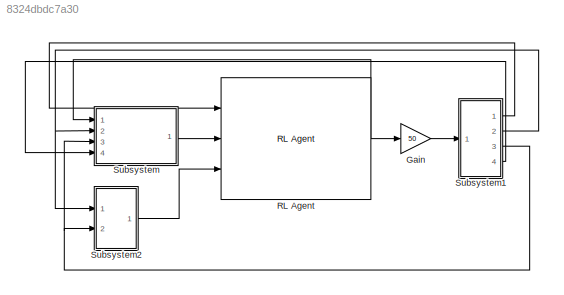
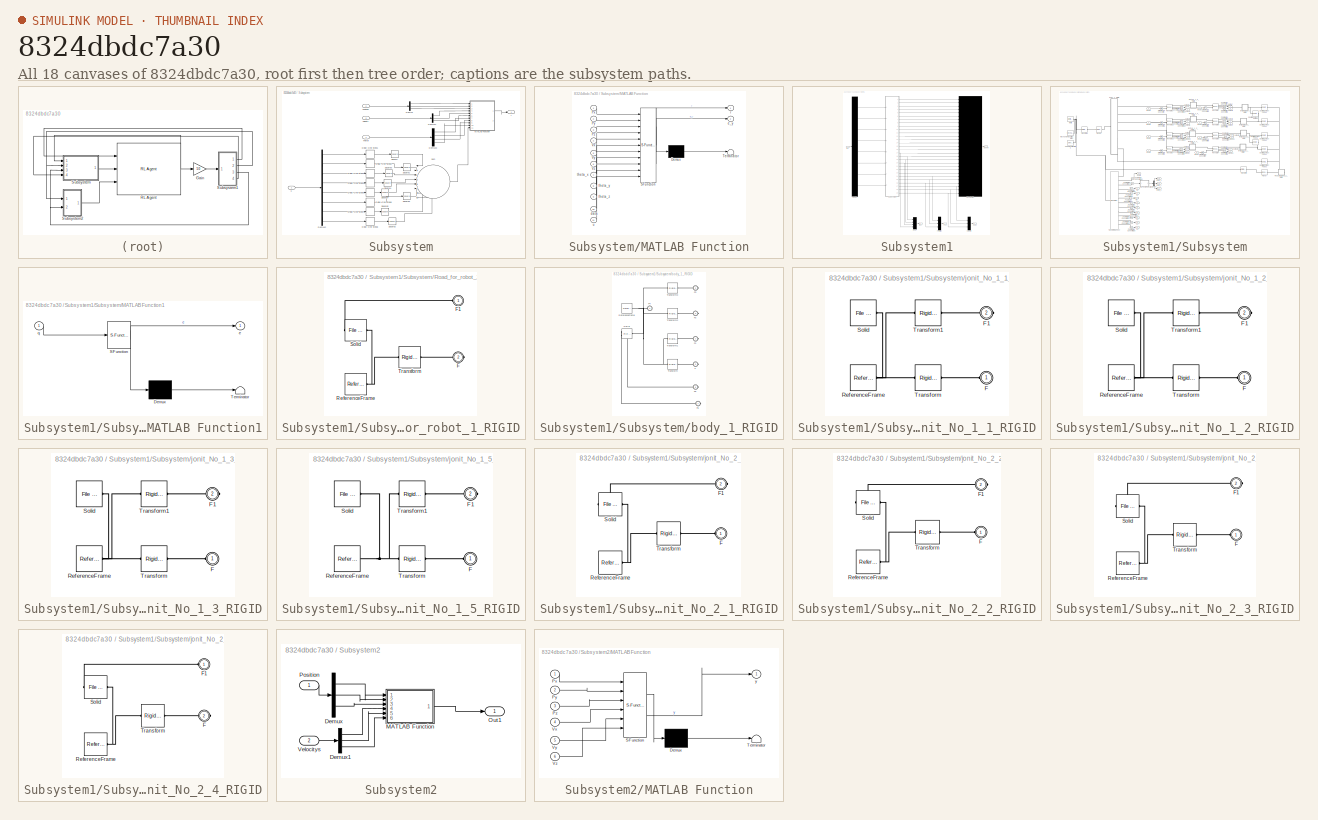
[diagram: thumbnail index - all 18 canvases of the model, root first then tree order]
MODEL slx_8324dbdc7a30
KIND model
CONFIG AbsTol = auto
CONFIG EnableMultiTasking = off
CONFIG FixedStep = auto
CONFIG MaxStep = auto
CONFIG MinStep = auto
CONFIG RelTol = 1e-3
CONFIG SampleTimeConstraint = Unconstrained
CONFIG SolverName = VariableStepAuto
CONFIG StartTime = 0.0
CONFIG StopTime = 10.0
BLOCK [Gain] Gain
  Gain = 50
  Multiplication = Matrix(K*u)
BLOCK [Reference] RL Agent  REF=rllib/RL Agent
  Ports = [3, 1]
  SourceBlock = rllib/RL Agent
  SourceProductBaseCode = RL
  SourceType = RL Agent
BLOCK [SubSystem] Subsystem
  Ports = [4, 1]
  RequestExecContextInheritance = off
BLOCK [Delay] Subsystem/Delay One Step1
  DelayLength = 1
  InputPortMap = u0
  Ports = [1, 1]
BLOCK [Delay] Subsystem/Delay One Step2
  DelayLength = 1
  InputPortMap = u0
  Ports = [1, 1]
BLOCK [Delay] Subsystem/Delay One Step3
  DelayLength = 1
  InputPortMap = u0
  Ports = [1, 1]
BLOCK [Delay] Subsystem/Delay One Step4
  DelayLength = 1
  InputPortMap = u0
  Ports = [1, 1]
BLOCK [Delay] Subsystem/Delay One Step5
  DelayLength = 1
  InputPortMap = u0
  Ports = [1, 1]
BLOCK [Delay] Subsystem/Delay One Step6
  DelayLength = 1
  InputPortMap = u0
  Ports = [1, 1]
BLOCK [Delay] Subsystem/Delay One Step7
  DelayLength = 1
  InputPortMap = u0
  Ports = [1, 1]
BLOCK [Delay] Subsystem/Delay One Step8
  DelayLength = 1
  InputPortMap = u0
  Ports = [1, 1]
BLOCK [Demux] Subsystem/Demux
  Outputs = 3
  Ports = [1, 3]
BLOCK [Demux] Subsystem/Demux1
  Outputs = 3
  Ports = [1, 3]
BLOCK [Demux] Subsystem/Demux2
  Outputs = 8
  Ports = [1, 8]
BLOCK [Demux] Subsystem/Demux3
  Ports = [1, 4]
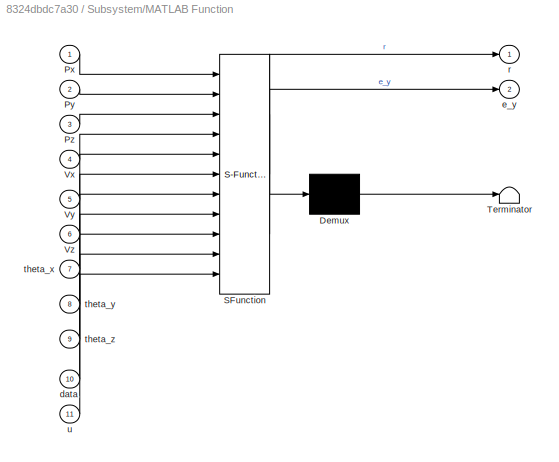
BLOCK [SubSystem] Subsystem/MATLAB Function
  ErrorFcn = Stateflow.Translate.translate
  PermitHierarchicalResolution = ExplicitOnly
  Ports = [11, 2]
  RequestExecContextInheritance = off
  SFBlockType = MATLAB Function
  TreatAsAtomicUnit = on
BLOCK [Demux] Subsystem/MATLAB Function/ Demux 
  Outputs = 1
  Ports = [1, 1]
BLOCK [S-Function] Subsystem/MATLAB Function/ SFunction 
  EnableBusSupport = on
  FunctionName = sf_sfun
  PortCounts = [11 3]
  Ports = [11, 3]
  SFcnIsStateOwnerBlock = off
  SFunctionDeploymentMode = off
  Tag = Stateflow S-Function 2
BLOCK [Terminator] Subsystem/MATLAB Function/ Terminator 
BLOCK [Inport] Subsystem/MATLAB Function/Px
BLOCK [Inport] Subsystem/MATLAB Function/Py
  Port = 2
BLOCK [Inport] Subsystem/MATLAB Function/Pz
  Port = 3
BLOCK [Inport] Subsystem/MATLAB Function/Vx
  Port = 4
BLOCK [Inport] Subsystem/MATLAB Function/Vy
  Port = 5
BLOCK [Inport] Subsystem/MATLAB Function/Vz
  Port = 6
BLOCK [Inport] Subsystem/MATLAB Function/data
  Port = 10
BLOCK [Outport] Subsystem/MATLAB Function/e_y
  Port = 2
BLOCK [Outport] Subsystem/MATLAB Function/r
BLOCK [Inport] Subsystem/MATLAB Function/theta_x
  Port = 7
BLOCK [Inport] Subsystem/MATLAB Function/theta_y
  Port = 8
BLOCK [Inport] Subsystem/MATLAB Function/theta_z
  Port = 9
BLOCK [Inport] Subsystem/MATLAB Function/u
  Port = 11
BLOCK [Inport] Subsystem/Position
  Port = 2
BLOCK [Math] Subsystem/Square
  Operator = square
  Ports = [1, 1]
BLOCK [Math] Subsystem/Square1
  Operator = square
  Ports = [1, 1]
BLOCK [Math] Subsystem/Square2
  Operator = square
  Ports = [1, 1]
BLOCK [Math] Subsystem/Square3
  Operator = square
  Ports = [1, 1]
BLOCK [Math] Subsystem/Square4
  Operator = square
  Ports = [1, 1]
BLOCK [Math] Subsystem/Square5
  Operator = square
  Ports = [1, 1]
BLOCK [Math] Subsystem/Square6
  Operator = square
  Ports = [1, 1]
BLOCK [Math] Subsystem/Square7
  Operator = square
  Ports = [1, 1]
BLOCK [Sum] Subsystem/Sum
  Inputs = |++++++++
  Ports = [8, 1]
BLOCK [Inport] Subsystem/Thetot
  Port = 4
BLOCK [Inport] Subsystem/Velocity
  Port = 3
BLOCK [Outport] Subsystem/r
BLOCK [Inport] Subsystem/u
BLOCK [SubSystem] Subsystem1
  Ports = [1, 4]
  RequestExecContextInheritance = off
BLOCK [Demux] Subsystem1/Demux
  Outputs = 8
  Ports = [1, 8]
BLOCK [Inport] Subsystem1/In1
BLOCK [Outport] Subsystem1/Observ
BLOCK [Mux] Subsystem1/Observation
  DisplayOption = bar
  Inputs = 29
  Ports = [29, 1]
BLOCK [Outport] Subsystem1/Pos
  Port = 2
BLOCK [Mux] Subsystem1/Position
  DisplayOption = bar
  Inputs = 3
  Ports = [3, 1]
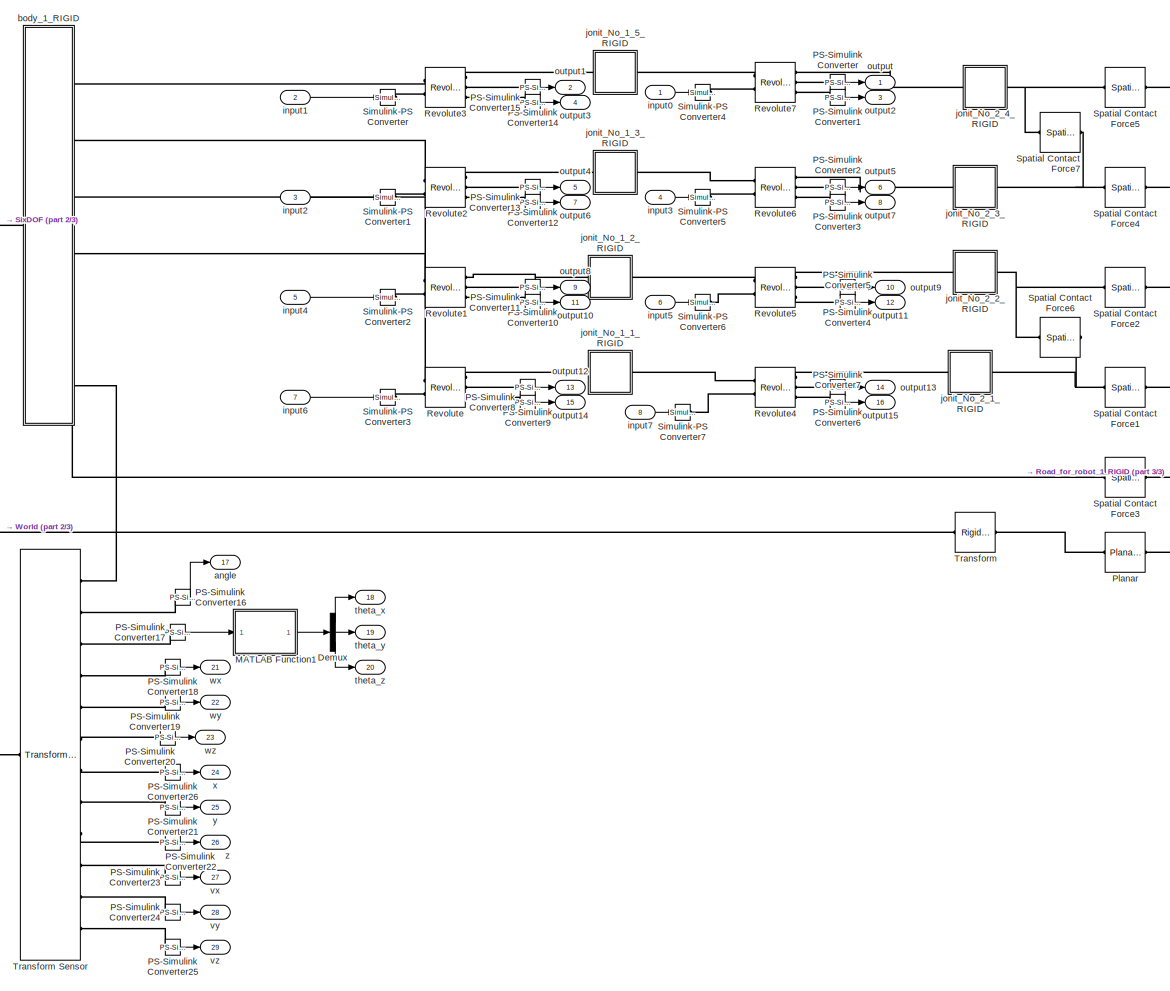
[diagram: Subsystem1/Subsystem - part 1/3, center side, full height]
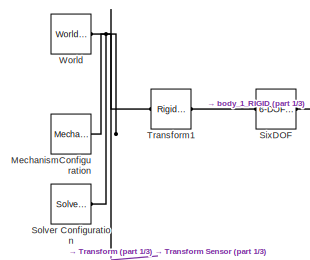
[diagram: Subsystem1/Subsystem - part 2/3, top left region]
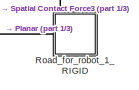
[diagram: Subsystem1/Subsystem - part 3/3, middle right region]
BLOCK [SubSystem] Subsystem1/Subsystem
  Ports = [8, 29]
  RequestExecContextInheritance = off
BLOCK [Demux] Subsystem1/Subsystem/Demux
  Outputs = 3
  Ports = [1, 3]
BLOCK [SubSystem] Subsystem1/Subsystem/MATLAB Function1
  ErrorFcn = Stateflow.Translate.translate
  PermitHierarchicalResolution = ExplicitOnly
  Ports = [1, 1]
  RequestExecContextInheritance = off
  SFBlockType = MATLAB Function
  TreatAsAtomicUnit = on
BLOCK [Demux] Subsystem1/Subsystem/MATLAB Function1/ Demux 
  Outputs = 1
  Ports = [1, 1]
BLOCK [S-Function] Subsystem1/Subsystem/MATLAB Function1/ SFunction 
  EnableBusSupport = on
  FunctionName = sf_sfun
  PortCounts = [1 2]
  Ports = [1, 2]
  SFcnIsStateOwnerBlock = off
  SFunctionDeploymentMode = off
  Tag = Stateflow S-Function 4
BLOCK [Terminator] Subsystem1/Subsystem/MATLAB Function1/ Terminator 
BLOCK [Outport] Subsystem1/Subsystem/MATLAB Function1/e
  VectorParamsAs1DForOutWhenUnconnected = off
BLOCK [Inport] Subsystem1/Subsystem/MATLAB Function1/q
BLOCK [Reference] Subsystem1/Subsystem/MechanismConfiguration  REF=sm_lib/Utilities/Mechanism
Configuration
  Ports = [0, 0, 0, 0, 0, 0, 1]
  SourceBlock = sm_lib/Utilities/Mechanism\nConfiguration
  SourceProductBaseCode = MS
  SourceType = Mechanism\nConfiguration
BLOCK [Reference] Subsystem1/Subsystem/PS-Simulink Converter  REF=nesl_utility/PS-Simulink
Converter
  Ports = [0, 1, 0, 0, 0, 1]
  SourceBlock = nesl_utility/PS-Simulink\nConverter
  SourceProductBaseCode = PW,SS
  SourceType = PS-Simulink\nConverter
BLOCK [Reference] Subsystem1/Subsystem/PS-Simulink Converter1  REF=nesl_utility/PS-Simulink
Converter
  Ports = [0, 1, 0, 0, 0, 1]
  SourceBlock = nesl_utility/PS-Simulink\nConverter
  SourceProductBaseCode = PW,SS
  SourceType = PS-Simulink\nConverter
BLOCK [Reference] Subsystem1/Subsystem/PS-Simulink Converter10  REF=nesl_utility/PS-Simulink
Converter
  Ports = [0, 1, 0, 0, 0, 1]
  SourceBlock = nesl_utility/PS-Simulink\nConverter
  SourceProductBaseCode = PW,SS
  SourceType = PS-Simulink\nConverter
BLOCK [Reference] Subsystem1/Subsystem/PS-Simulink Converter11  REF=nesl_utility/PS-Simulink
Converter
  Ports = [0, 1, 0, 0, 0, 1]
  SourceBlock = nesl_utility/PS-Simulink\nConverter
  SourceProductBaseCode = PW,SS
  SourceType = PS-Simulink\nConverter
BLOCK [Reference] Subsystem1/Subsystem/PS-Simulink Converter12  REF=nesl_utility/PS-Simulink
Converter
  Ports = [0, 1, 0, 0, 0, 1]
  SourceBlock = nesl_utility/PS-Simulink\nConverter
  SourceProductBaseCode = PW,SS
  SourceType = PS-Simulink\nConverter
BLOCK [Reference] Subsystem1/Subsystem/PS-Simulink Converter13  REF=nesl_utility/PS-Simulink
Converter
  Ports = [0, 1, 0, 0, 0, 1]
  SourceBlock = nesl_utility/PS-Simulink\nConverter
  SourceProductBaseCode = PW,SS
  SourceType = PS-Simulink\nConverter
BLOCK [Reference] Subsystem1/Subsystem/PS-Simulink Converter14  REF=nesl_utility/PS-Simulink
Converter
  Ports = [0, 1, 0, 0, 0, 1]
  SourceBlock = nesl_utility/PS-Simulink\nConverter
  SourceProductBaseCode = PW,SS
  SourceType = PS-Simulink\nConverter
BLOCK [Reference] Subsystem1/Subsystem/PS-Simulink Converter15  REF=nesl_utility/PS-Simulink
Converter
  Ports = [0, 1, 0, 0, 0, 1]
  SourceBlock = nesl_utility/PS-Simulink\nConverter
  SourceProductBaseCode = PW,SS
  SourceType = PS-Simulink\nConverter
BLOCK [Reference] Subsystem1/Subsystem/PS-Simulink Converter16  REF=nesl_utility/PS-Simulink
Converter
  Ports = [0, 1, 0, 0, 0, 1]
  SourceBlock = nesl_utility/PS-Simulink\nConverter
  SourceProductBaseCode = PW,SS
  SourceType = PS-Simulink\nConverter
BLOCK [Reference] Subsystem1/Subsystem/PS-Simulink Converter17  REF=nesl_utility/PS-Simulink
Converter
  Ports = [0, 1, 0, 0, 0, 1]
  SourceBlock = nesl_utility/PS-Simulink\nConverter
  SourceProductBaseCode = PW,SS
  SourceType = PS-Simulink\nConverter
BLOCK [Reference] Subsystem1/Subsystem/PS-Simulink Converter18  REF=nesl_utility/PS-Simulink
Converter
  Ports = [0, 1, 0, 0, 0, 1]
  SourceBlock = nesl_utility/PS-Simulink\nConverter
  SourceProductBaseCode = PW,SS
  SourceType = PS-Simulink\nConverter
BLOCK [Reference] Subsystem1/Subsystem/PS-Simulink Converter19  REF=nesl_utility/PS-Simulink
Converter
  Ports = [0, 1, 0, 0, 0, 1]
  SourceBlock = nesl_utility/PS-Simulink\nConverter
  SourceProductBaseCode = PW,SS
  SourceType = PS-Simulink\nConverter
BLOCK [Reference] Subsystem1/Subsystem/PS-Simulink Converter2  REF=nesl_utility/PS-Simulink
Converter
  Ports = [0, 1, 0, 0, 0, 1]
  SourceBlock = nesl_utility/PS-Simulink\nConverter
  SourceProductBaseCode = PW,SS
  SourceType = PS-Simulink\nConverter
BLOCK [Reference] Subsystem1/Subsystem/PS-Simulink Converter20  REF=nesl_utility/PS-Simulink
Converter
  Ports = [0, 1, 0, 0, 0, 1]
  SourceBlock = nesl_utility/PS-Simulink\nConverter
  SourceProductBaseCode = PW,SS
  SourceType = PS-Simulink\nConverter
BLOCK [Reference] Subsystem1/Subsystem/PS-Simulink Converter21  REF=nesl_utility/PS-Simulink
Converter
  Ports = [0, 1, 0, 0, 0, 1]
  SourceBlock = nesl_utility/PS-Simulink\nConverter
  SourceProductBaseCode = PW,SS
  SourceType = PS-Simulink\nConverter
BLOCK [Reference] Subsystem1/Subsystem/PS-Simulink Converter22  REF=nesl_utility/PS-Simulink
Converter
  Ports = [0, 1, 0, 0, 0, 1]
  SourceBlock = nesl_utility/PS-Simulink\nConverter
  SourceProductBaseCode = PW,SS
  SourceType = PS-Simulink\nConverter
BLOCK [Reference] Subsystem1/Subsystem/PS-Simulink Converter23  REF=nesl_utility/PS-Simulink
Converter
  Ports = [0, 1, 0, 0, 0, 1]
  SourceBlock = nesl_utility/PS-Simulink\nConverter
  SourceProductBaseCode = PW,SS
  SourceType = PS-Simulink\nConverter
BLOCK [Reference] Subsystem1/Subsystem/PS-Simulink Converter24  REF=nesl_utility/PS-Simulink
Converter
  Ports = [0, 1, 0, 0, 0, 1]
  SourceBlock = nesl_utility/PS-Simulink\nConverter
  SourceProductBaseCode = PW,SS
  SourceType = PS-Simulink\nConverter
BLOCK [Reference] Subsystem1/Subsystem/PS-Simulink Converter25  REF=nesl_utility/PS-Simulink
Converter
  Ports = [0, 1, 0, 0, 0, 1]
  SourceBlock = nesl_utility/PS-Simulink\nConverter
  SourceProductBaseCode = PW,SS
  SourceType = PS-Simulink\nConverter
BLOCK [Reference] Subsystem1/Subsystem/PS-Simulink Converter26  REF=nesl_utility/PS-Simulink
Converter
  Ports = [0, 1, 0, 0, 0, 1]
  SourceBlock = nesl_utility/PS-Simulink\nConverter
  SourceProductBaseCode = PW,SS
  SourceType = PS-Simulink\nConverter
BLOCK [Reference] Subsystem1/Subsystem/PS-Simulink Converter3  REF=nesl_utility/PS-Simulink
Converter
  Ports = [0, 1, 0, 0, 0, 1]
  SourceBlock = nesl_utility/PS-Simulink\nConverter
  SourceProductBaseCode = PW,SS
  SourceType = PS-Simulink\nConverter
BLOCK [Reference] Subsystem1/Subsystem/PS-Simulink Converter4  REF=nesl_utility/PS-Simulink
Converter
  Ports = [0, 1, 0, 0, 0, 1]
  SourceBlock = nesl_utility/PS-Simulink\nConverter
  SourceProductBaseCode = PW,SS
  SourceType = PS-Simulink\nConverter
BLOCK [Reference] Subsystem1/Subsystem/PS-Simulink Converter5  REF=nesl_utility/PS-Simulink
Converter
  Ports = [0, 1, 0, 0, 0, 1]
  SourceBlock = nesl_utility/PS-Simulink\nConverter
  SourceProductBaseCode = PW,SS
  SourceType = PS-Simulink\nConverter
BLOCK [Reference] Subsystem1/Subsystem/PS-Simulink Converter6  REF=nesl_utility/PS-Simulink
Converter
  Ports = [0, 1, 0, 0, 0, 1]
  SourceBlock = nesl_utility/PS-Simulink\nConverter
  SourceProductBaseCode = PW,SS
  SourceType = PS-Simulink\nConverter
BLOCK [Reference] Subsystem1/Subsystem/PS-Simulink Converter7  REF=nesl_utility/PS-Simulink
Converter
  Ports = [0, 1, 0, 0, 0, 1]
  SourceBlock = nesl_utility/PS-Simulink\nConverter
  SourceProductBaseCode = PW,SS
  SourceType = PS-Simulink\nConverter
BLOCK [Reference] Subsystem1/Subsystem/PS-Simulink Converter8  REF=nesl_utility/PS-Simulink
Converter
  Ports = [0, 1, 0, 0, 0, 1]
  SourceBlock = nesl_utility/PS-Simulink\nConverter
  SourceProductBaseCode = PW,SS
  SourceType = PS-Simulink\nConverter
BLOCK [Reference] Subsystem1/Subsystem/PS-Simulink Converter9  REF=nesl_utility/PS-Simulink
Converter
  Ports = [0, 1, 0, 0, 0, 1]
  SourceBlock = nesl_utility/PS-Simulink\nConverter
  SourceProductBaseCode = PW,SS
  SourceType = PS-Simulink\nConverter
BLOCK [Reference] Subsystem1/Subsystem/Planar  REF=sm_lib/Joints/Planar Joint
  Ports = [0, 0, 0, 0, 0, 1, 1]
  SourceBlock = sm_lib/Joints/Planar Joint
  SourceProductBaseCode = MS
  SourceType = Planar Joint
BLOCK [Reference] Subsystem1/Subsystem/Revolute  REF=sm_lib/Joints/Revolute Joint
  Ports = [0, 0, 0, 0, 0, 2, 3]
  SourceBlock = sm_lib/Joints/Revolute Joint
  SourceProductBaseCode = MS
  SourceType = Revolute Joint
BLOCK [Reference] Subsystem1/Subsystem/Revolute1  REF=sm_lib/Joints/Revolute Joint
  Ports = [0, 0, 0, 0, 0, 2, 3]
  SourceBlock = sm_lib/Joints/Revolute Joint
  SourceProductBaseCode = MS
  SourceType = Revolute Joint
BLOCK [Reference] Subsystem1/Subsystem/Revolute2  REF=sm_lib/Joints/Revolute Joint
  Ports = [0, 0, 0, 0, 0, 2, 3]
  SourceBlock = sm_lib/Joints/Revolute Joint
  SourceProductBaseCode = MS
  SourceType = Revolute Joint
BLOCK [Reference] Subsystem1/Subsystem/Revolute3  REF=sm_lib/Joints/Revolute Joint
  Ports = [0, 0, 0, 0, 0, 2, 3]
  SourceBlock = sm_lib/Joints/Revolute Joint
  SourceProductBaseCode = MS
  SourceType = Revolute Joint
BLOCK [Reference] Subsystem1/Subsystem/Revolute4  REF=sm_lib/Joints/Revolute Joint
  Ports = [0, 0, 0, 0, 0, 2, 3]
  SourceBlock = sm_lib/Joints/Revolute Joint
  SourceProductBaseCode = MS
  SourceType = Revolute Joint
BLOCK [Reference] Subsystem1/Subsystem/Revolute5  REF=sm_lib/Joints/Revolute Joint
  Ports = [0, 0, 0, 0, 0, 2, 3]
  SourceBlock = sm_lib/Joints/Revolute Joint
  SourceProductBaseCode = MS
  SourceType = Revolute Joint
BLOCK [Reference] Subsystem1/Subsystem/Revolute6  REF=sm_lib/Joints/Revolute Joint
  Ports = [0, 0, 0, 0, 0, 2, 3]
  SourceBlock = sm_lib/Joints/Revolute Joint
  SourceProductBaseCode = MS
  SourceType = Revolute Joint
BLOCK [Reference] Subsystem1/Subsystem/Revolute7  REF=sm_lib/Joints/Revolute Joint
  Ports = [0, 0, 0, 0, 0, 2, 3]
  SourceBlock = sm_lib/Joints/Revolute Joint
  SourceProductBaseCode = MS
  SourceType = Revolute Joint
BLOCK [SubSystem] Subsystem1/Subsystem/Road_for_robot_1_RIGID
  PortSchema = {"entries":[{"content":{"sides":[{"content":{"connectorIds":[]},"type":"ConnectorPlacement.EquallySpacedRectSide","uuid":"4bd2333f-1a4d-4188-80dd-1e0cb22718a9"},{"content":{"connectorIds":["RConn1"],"side":"RIGHT"},"type":"ConnectorPlacement.EquallySpacedRectSide","uuid":"d82b7745-c9be-4b63-81cd-356910a83aa3"},{"content":{"connectorIds":["LConn1"],"side":"TOP"},"type":"ConnectorPlacement.EquallySp...<+245ch>
  Ports = [0, 0, 0, 0, 0, 1, 1]
  RequestExecContextInheritance = off
BLOCK [PMIOPort] Subsystem1/Subsystem/Road_for_robot_1_RIGID/F
  Port = 2
  Side = Right
BLOCK [PMIOPort] Subsystem1/Subsystem/Road_for_robot_1_RIGID/F1
  Side = Left
BLOCK [Reference] Subsystem1/Subsystem/Road_for_robot_1_RIGID/ReferenceFrame  REF=sm_lib/Frames and
Transforms/Reference
Frame
  Ports = [0, 0, 0, 0, 0, 0, 1]
  SourceBlock = sm_lib/Frames and\nTransforms/Reference\nFrame
  SourceProductBaseCode = MS
  SourceType = Reference\nFrame
BLOCK [Reference] Subsystem1/Subsystem/Road_for_robot_1_RIGID/Solid  REF=sm_lib/Body Elements/File Solid
  Ports = [0, 0, 0, 0, 0, 1, 1]
  SourceBlock = sm_lib/Body Elements/File Solid
  SourceProductBaseCode = MS
  SourceType = File Solid
BLOCK [Reference] Subsystem1/Subsystem/Road_for_robot_1_RIGID/Transform  REF=sm_lib/Frames and
Transforms/Rigid
Transform
  Ports = [0, 0, 0, 0, 0, 1, 1]
  SourceBlock = sm_lib/Frames and\nTransforms/Rigid\nTransform
  SourceProductBaseCode = MS
  SourceType = Rigid\nTransform
BLOCK [Reference] Subsystem1/Subsystem/Simulink-PS Converter  REF=nesl_utility/Simulink-PS
Converter
  Ports = [1, 0, 0, 0, 0, 0, 1]
  SourceBlock = nesl_utility/Simulink-PS\nConverter
  SourceProductBaseCode = PW,SS
  SourceType = Simulink-PS\nConverter
BLOCK [Reference] Subsystem1/Subsystem/Simulink-PS Converter1  REF=nesl_utility/Simulink-PS
Converter
  Ports = [1, 0, 0, 0, 0, 0, 1]
  SourceBlock = nesl_utility/Simulink-PS\nConverter
  SourceProductBaseCode = PW,SS
  SourceType = Simulink-PS\nConverter
BLOCK [Reference] Subsystem1/Subsystem/Simulink-PS Converter2  REF=nesl_utility/Simulink-PS
Converter
  Ports = [1, 0, 0, 0, 0, 0, 1]
  SourceBlock = nesl_utility/Simulink-PS\nConverter
  SourceProductBaseCode = PW,SS
  SourceType = Simulink-PS\nConverter
BLOCK [Reference] Subsystem1/Subsystem/Simulink-PS Converter3  REF=nesl_utility/Simulink-PS
Converter
  Ports = [1, 0, 0, 0, 0, 0, 1]
  SourceBlock = nesl_utility/Simulink-PS\nConverter
  SourceProductBaseCode = PW,SS
  SourceType = Simulink-PS\nConverter
BLOCK [Reference] Subsystem1/Subsystem/Simulink-PS Converter4  REF=nesl_utility/Simulink-PS
Converter
  Ports = [1, 0, 0, 0, 0, 0, 1]
  SourceBlock = nesl_utility/Simulink-PS\nConverter
  SourceProductBaseCode = PW,SS
  SourceType = Simulink-PS\nConverter
BLOCK [Reference] Subsystem1/Subsystem/Simulink-PS Converter5  REF=nesl_utility/Simulink-PS
Converter
  Ports = [1, 0, 0, 0, 0, 0, 1]
  SourceBlock = nesl_utility/Simulink-PS\nConverter
  SourceProductBaseCode = PW,SS
  SourceType = Simulink-PS\nConverter
BLOCK [Reference] Subsystem1/Subsystem/Simulink-PS Converter6  REF=nesl_utility/Simulink-PS
Converter
  Ports = [1, 0, 0, 0, 0, 0, 1]
  SourceBlock = nesl_utility/Simulink-PS\nConverter
  SourceProductBaseCode = PW,SS
  SourceType = Simulink-PS\nConverter
BLOCK [Reference] Subsystem1/Subsystem/Simulink-PS Converter7  REF=nesl_utility/Simulink-PS
Converter
  Ports = [1, 0, 0, 0, 0, 0, 1]
  SourceBlock = nesl_utility/Simulink-PS\nConverter
  SourceProductBaseCode = PW,SS
  SourceType = Simulink-PS\nConverter
BLOCK [Reference] Subsystem1/Subsystem/SixDOF  REF=sm_lib/Joints/6-DOF Joint
  Ports = [0, 0, 0, 0, 0, 1, 1]
  SourceBlock = sm_lib/Joints/6-DOF Joint
  SourceProductBaseCode = MS
  SourceType = 6-DOF Joint
BLOCK [Reference] Subsystem1/Subsystem/Solver Configuration  REF=nesl_utility/Solver
Configuration
  Ports = [0, 0, 0, 0, 0, 0, 1]
  SourceBlock = nesl_utility/Solver\nConfiguration
  SourceProductBaseCode = PW,SS
  SourceType = Solver\nConfiguration
BLOCK [Reference] Subsystem1/Subsystem/Spatial Contact Force1  REF=sm_lib/Forces and
Torques/Spatial
Contact Force
  Ports = [0, 0, 0, 0, 0, 1, 1]
  SourceBlock = sm_lib/Forces and\nTorques/Spatial\nContact Force
  SourceProductBaseCode = MS
  SourceType = Spatial\nContact Force
BLOCK [Reference] Subsystem1/Subsystem/Spatial Contact Force2  REF=sm_lib/Forces and
Torques/Spatial
Contact Force
  Ports = [0, 0, 0, 0, 0, 1, 1]
  SourceBlock = sm_lib/Forces and\nTorques/Spatial\nContact Force
  SourceProductBaseCode = MS
  SourceType = Spatial\nContact Force
BLOCK [Reference] Subsystem1/Subsystem/Spatial Contact Force3  REF=sm_lib/Forces and
Torques/Spatial
Contact Force
  Ports = [0, 0, 0, 0, 0, 1, 1]
  SourceBlock = sm_lib/Forces and\nTorques/Spatial\nContact Force
  SourceProductBaseCode = MS
  SourceType = Spatial\nContact Force
BLOCK [Reference] Subsystem1/Subsystem/Spatial Contact Force4  REF=sm_lib/Forces and
Torques/Spatial
Contact Force
  Ports = [0, 0, 0, 0, 0, 1, 1]
  SourceBlock = sm_lib/Forces and\nTorques/Spatial\nContact Force
  SourceProductBaseCode = MS
  SourceType = Spatial\nContact Force
BLOCK [Reference] Subsystem1/Subsystem/Spatial Contact Force5  REF=sm_lib/Forces and
Torques/Spatial
Contact Force
  Ports = [0, 0, 0, 0, 0, 1, 1]
  SourceBlock = sm_lib/Forces and\nTorques/Spatial\nContact Force
  SourceProductBaseCode = MS
  SourceType = Spatial\nContact Force
BLOCK [Reference] Subsystem1/Subsystem/Spatial Contact Force6  REF=sm_lib/Forces and
Torques/Spatial
Contact Force
  Ports = [0, 0, 0, 0, 0, 1, 1]
  SourceBlock = sm_lib/Forces and\nTorques/Spatial\nContact Force
  SourceProductBaseCode = MS
  SourceType = Spatial\nContact Force
BLOCK [Reference] Subsystem1/Subsystem/Spatial Contact Force7  REF=sm_lib/Forces and
Torques/Spatial
Contact Force
  Ports = [0, 0, 0, 0, 0, 1, 1]
  SourceBlock = sm_lib/Forces and\nTorques/Spatial\nContact Force
  SourceProductBaseCode = MS
  SourceType = Spatial\nContact Force
BLOCK [Reference] Subsystem1/Subsystem/Transform  REF=sm_lib/Frames and
Transforms/Rigid
Transform
  Ports = [0, 0, 0, 0, 0, 1, 1]
  SourceBlock = sm_lib/Frames and\nTransforms/Rigid\nTransform
  SourceProductBaseCode = MS
  SourceType = Rigid\nTransform
BLOCK [Reference] Subsystem1/Subsystem/Transform Sensor  REF=sm_lib/Frames and
Transforms/Transform
Sensor
  Ports = [0, 0, 0, 0, 0, 1, 12]
  SourceBlock = sm_lib/Frames and\nTransforms/Transform\nSensor
  SourceProductBaseCode = MS
  SourceType = Transform\nSensor
BLOCK [Reference] Subsystem1/Subsystem/Transform1  REF=sm_lib/Frames and
Transforms/Rigid
Transform
  Ports = [0, 0, 0, 0, 0, 1, 1]
  SourceBlock = sm_lib/Frames and\nTransforms/Rigid\nTransform
  SourceProductBaseCode = MS
  SourceType = Rigid\nTransform
BLOCK [Reference] Subsystem1/Subsystem/World  REF=sm_lib/Frames and
Transforms/World Frame
  Ports = [0, 0, 0, 0, 0, 0, 1]
  SourceBlock = sm_lib/Frames and\nTransforms/World Frame
  SourceProductBaseCode = MS
  SourceType = World Frame
BLOCK [Outport] Subsystem1/Subsystem/angle
  Port = 17
BLOCK [SubSystem] Subsystem1/Subsystem/body_1_RIGID
  PortSchema = {"entries":[{"content":{"sides":[{"content":{"connectorIds":["LConn1"]},"type":"ConnectorPlacement.EquallySpacedRectSide","uuid":"2f6502d0-e9ca-4821-8e3d-a9a80572cecb"},{"content":{"connectorIds":["RConn1","RConn2","RConn3","RConn4"],"side":"RIGHT"},"type":"ConnectorPlacement.EquallySpacedRectSide","uuid":"8f1cec7a-91f8-4845-8d3d-8af05eaddd18"},{"content":{"connectorIds":[],"side":"TOP"},"type":"C...<+433ch>
  Ports = [0, 0, 0, 0, 0, 1, 6]
  RequestExecContextInheritance = off
BLOCK [PMIOPort] Subsystem1/Subsystem/body_1_RIGID/F
  Port = 5
  Side = Right
BLOCK [PMIOPort] Subsystem1/Subsystem/body_1_RIGID/F1
  Port = 4
  Side = Right
BLOCK [PMIOPort] Subsystem1/Subsystem/body_1_RIGID/F2
  Port = 3
  Side = Right
BLOCK [PMIOPort] Subsystem1/Subsystem/body_1_RIGID/F3
  Port = 2
  Side = Right
BLOCK [PMIOPort] Subsystem1/Subsystem/body_1_RIGID/F4
  Side = Left
BLOCK [PMIOPort] Subsystem1/Subsystem/body_1_RIGID/F5
  Port = 6
  Side = Right
BLOCK [PMIOPort] Subsystem1/Subsystem/body_1_RIGID/F6
  Port = 7
  Side = Right
BLOCK [Reference] Subsystem1/Subsystem/body_1_RIGID/ReferenceFrame  REF=sm_lib/Frames and
Transforms/Reference
Frame
  Ports = [0, 0, 0, 0, 0, 0, 1]
  SourceBlock = sm_lib/Frames and\nTransforms/Reference\nFrame
  SourceProductBaseCode = MS
  SourceType = Reference\nFrame
BLOCK [Reference] Subsystem1/Subsystem/body_1_RIGID/Solid  REF=sm_lib/Body Elements/File Solid
  Ports = [0, 0, 0, 0, 0, 2, 1]
  SourceBlock = sm_lib/Body Elements/File Solid
  SourceProductBaseCode = MS
  SourceType = File Solid
BLOCK [Reference] Subsystem1/Subsystem/body_1_RIGID/Transform  REF=sm_lib/Frames and
Transforms/Rigid
Transform
  Ports = [0, 0, 0, 0, 0, 1, 1]
  SourceBlock = sm_lib/Frames and\nTransforms/Rigid\nTransform
  SourceProductBaseCode = MS
  SourceType = Rigid\nTransform
BLOCK [Reference] Subsystem1/Subsystem/body_1_RIGID/Transform1  REF=sm_lib/Frames and
Transforms/Rigid
Transform
  Ports = [0, 0, 0, 0, 0, 1, 1]
  SourceBlock = sm_lib/Frames and\nTransforms/Rigid\nTransform
  SourceProductBaseCode = MS
  SourceType = Rigid\nTransform
BLOCK [Reference] Subsystem1/Subsystem/body_1_RIGID/Transform2  REF=sm_lib/Frames and
Transforms/Rigid
Transform
  Ports = [0, 0, 0, 0, 0, 1, 1]
  SourceBlock = sm_lib/Frames and\nTransforms/Rigid\nTransform
  SourceProductBaseCode = MS
  SourceType = Rigid\nTransform
BLOCK [Reference] Subsystem1/Subsystem/body_1_RIGID/Transform3  REF=sm_lib/Frames and
Transforms/Rigid
Transform
  Ports = [0, 0, 0, 0, 0, 1, 1]
  SourceBlock = sm_lib/Frames and\nTransforms/Rigid\nTransform
  SourceProductBaseCode = MS
  SourceType = Rigid\nTransform
BLOCK [Inport] Subsystem1/Subsystem/input0
BLOCK [Inport] Subsystem1/Subsystem/input1
  Port = 2
BLOCK [Inport] Subsystem1/Subsystem/input2
  Port = 3
BLOCK [Inport] Subsystem1/Subsystem/input3
  Port = 4
BLOCK [Inport] Subsystem1/Subsystem/input4
  Port = 5
BLOCK [Inport] Subsystem1/Subsystem/input5
  Port = 6
BLOCK [Inport] Subsystem1/Subsystem/input6
  Port = 7
BLOCK [Inport] Subsystem1/Subsystem/input7
  Port = 8
BLOCK [SubSystem] Subsystem1/Subsystem/jonit_No_1_1_RIGID
  Ports = [0, 0, 0, 0, 0, 1, 1]
  RequestExecContextInheritance = off
BLOCK [PMIOPort] Subsystem1/Subsystem/jonit_No_1_1_RIGID/F
  Side = Left
BLOCK [PMIOPort] Subsystem1/Subsystem/jonit_No_1_1_RIGID/F1
  Port = 2
  Side = Right
BLOCK [Reference] Subsystem1/Subsystem/jonit_No_1_1_RIGID/ReferenceFrame  REF=sm_lib/Frames and
Transforms/Reference
Frame
  Ports = [0, 0, 0, 0, 0, 0, 1]
  SourceBlock = sm_lib/Frames and\nTransforms/Reference\nFrame
  SourceProductBaseCode = MS
  SourceType = Reference\nFrame
BLOCK [Reference] Subsystem1/Subsystem/jonit_No_1_1_RIGID/Solid  REF=sm_lib/Body Elements/File Solid
  Ports = [0, 0, 0, 0, 0, 0, 1]
  SourceBlock = sm_lib/Body Elements/File Solid
  SourceProductBaseCode = MS
  SourceType = File Solid
BLOCK [Reference] Subsystem1/Subsystem/jonit_No_1_1_RIGID/Transform  REF=sm_lib/Frames and
Transforms/Rigid
Transform
  Ports = [0, 0, 0, 0, 0, 1, 1]
  SourceBlock = sm_lib/Frames and\nTransforms/Rigid\nTransform
  SourceProductBaseCode = MS
  SourceType = Rigid\nTransform
BLOCK [Reference] Subsystem1/Subsystem/jonit_No_1_1_RIGID/Transform1  REF=sm_lib/Frames and
Transforms/Rigid
Transform
  Ports = [0, 0, 0, 0, 0, 1, 1]
  SourceBlock = sm_lib/Frames and\nTransforms/Rigid\nTransform
  SourceProductBaseCode = MS
  SourceType = Rigid\nTransform
BLOCK [SubSystem] Subsystem1/Subsystem/jonit_No_1_2_RIGID
  Ports = [0, 0, 0, 0, 0, 1, 1]
  RequestExecContextInheritance = off
BLOCK [PMIOPort] Subsystem1/Subsystem/jonit_No_1_2_RIGID/F
  Side = Left
BLOCK [PMIOPort] Subsystem1/Subsystem/jonit_No_1_2_RIGID/F1
  Port = 2
  Side = Right
BLOCK [Reference] Subsystem1/Subsystem/jonit_No_1_2_RIGID/ReferenceFrame  REF=sm_lib/Frames and
Transforms/Reference
Frame
  Ports = [0, 0, 0, 0, 0, 0, 1]
  SourceBlock = sm_lib/Frames and\nTransforms/Reference\nFrame
  SourceProductBaseCode = MS
  SourceType = Reference\nFrame
BLOCK [Reference] Subsystem1/Subsystem/jonit_No_1_2_RIGID/Solid  REF=sm_lib/Body Elements/File Solid
  Ports = [0, 0, 0, 0, 0, 0, 1]
  SourceBlock = sm_lib/Body Elements/File Solid
  SourceProductBaseCode = MS
  SourceType = File Solid
BLOCK [Reference] Subsystem1/Subsystem/jonit_No_1_2_RIGID/Transform  REF=sm_lib/Frames and
Transforms/Rigid
Transform
  Ports = [0, 0, 0, 0, 0, 1, 1]
  SourceBlock = sm_lib/Frames and\nTransforms/Rigid\nTransform
  SourceProductBaseCode = MS
  SourceType = Rigid\nTransform
BLOCK [Reference] Subsystem1/Subsystem/jonit_No_1_2_RIGID/Transform1  REF=sm_lib/Frames and
Transforms/Rigid
Transform
  Ports = [0, 0, 0, 0, 0, 1, 1]
  SourceBlock = sm_lib/Frames and\nTransforms/Rigid\nTransform
  SourceProductBaseCode = MS
  SourceType = Rigid\nTransform
BLOCK [SubSystem] Subsystem1/Subsystem/jonit_No_1_3_RIGID
  Ports = [0, 0, 0, 0, 0, 1, 1]
  RequestExecContextInheritance = off
BLOCK [PMIOPort] Subsystem1/Subsystem/jonit_No_1_3_RIGID/F
  Side = Left
BLOCK [PMIOPort] Subsystem1/Subsystem/jonit_No_1_3_RIGID/F1
  Port = 2
  Side = Right
BLOCK [Reference] Subsystem1/Subsystem/jonit_No_1_3_RIGID/ReferenceFrame  REF=sm_lib/Frames and
Transforms/Reference
Frame
  Ports = [0, 0, 0, 0, 0, 0, 1]
  SourceBlock = sm_lib/Frames and\nTransforms/Reference\nFrame
  SourceProductBaseCode = MS
  SourceType = Reference\nFrame
BLOCK [Reference] Subsystem1/Subsystem/jonit_No_1_3_RIGID/Solid  REF=sm_lib/Body Elements/File Solid
  Ports = [0, 0, 0, 0, 0, 0, 1]
  SourceBlock = sm_lib/Body Elements/File Solid
  SourceProductBaseCode = MS
  SourceType = File Solid
BLOCK [Reference] Subsystem1/Subsystem/jonit_No_1_3_RIGID/Transform  REF=sm_lib/Frames and
Transforms/Rigid
Transform
  Ports = [0, 0, 0, 0, 0, 1, 1]
  SourceBlock = sm_lib/Frames and\nTransforms/Rigid\nTransform
  SourceProductBaseCode = MS
  SourceType = Rigid\nTransform
BLOCK [Reference] Subsystem1/Subsystem/jonit_No_1_3_RIGID/Transform1  REF=sm_lib/Frames and
Transforms/Rigid
Transform
  Ports = [0, 0, 0, 0, 0, 1, 1]
  SourceBlock = sm_lib/Frames and\nTransforms/Rigid\nTransform
  SourceProductBaseCode = MS
  SourceType = Rigid\nTransform
BLOCK [SubSystem] Subsystem1/Subsystem/jonit_No_1_5_RIGID
  Ports = [0, 0, 0, 0, 0, 1, 1]
  RequestExecContextInheritance = off
BLOCK [PMIOPort] Subsystem1/Subsystem/jonit_No_1_5_RIGID/F
  Side = Left
BLOCK [PMIOPort] Subsystem1/Subsystem/jonit_No_1_5_RIGID/F1
  Port = 2
  Side = Right
BLOCK [Reference] Subsystem1/Subsystem/jonit_No_1_5_RIGID/ReferenceFrame  REF=sm_lib/Frames and
Transforms/Reference
Frame
  Ports = [0, 0, 0, 0, 0, 0, 1]
  SourceBlock = sm_lib/Frames and\nTransforms/Reference\nFrame
  SourceProductBaseCode = MS
  SourceType = Reference\nFrame
BLOCK [Reference] Subsystem1/Subsystem/jonit_No_1_5_RIGID/Solid  REF=sm_lib/Body Elements/File Solid
  Ports = [0, 0, 0, 0, 0, 0, 1]
  SourceBlock = sm_lib/Body Elements/File Solid
  SourceProductBaseCode = MS
  SourceType = File Solid
BLOCK [Reference] Subsystem1/Subsystem/jonit_No_1_5_RIGID/Transform  REF=sm_lib/Frames and
Transforms/Rigid
Transform
  Ports = [0, 0, 0, 0, 0, 1, 1]
  SourceBlock = sm_lib/Frames and\nTransforms/Rigid\nTransform
  SourceProductBaseCode = MS
  SourceType = Rigid\nTransform
BLOCK [Reference] Subsystem1/Subsystem/jonit_No_1_5_RIGID/Transform1  REF=sm_lib/Frames and
Transforms/Rigid
Transform
  Ports = [0, 0, 0, 0, 0, 1, 1]
  SourceBlock = sm_lib/Frames and\nTransforms/Rigid\nTransform
  SourceProductBaseCode = MS
  SourceType = Rigid\nTransform
BLOCK [SubSystem] Subsystem1/Subsystem/jonit_No_2_1_RIGID
  Ports = [0, 0, 0, 0, 0, 1, 1]
  RequestExecContextInheritance = off
BLOCK [PMIOPort] Subsystem1/Subsystem/jonit_No_2_1_RIGID/F
  Side = Left
BLOCK [PMIOPort] Subsystem1/Subsystem/jonit_No_2_1_RIGID/F1
  Port = 2
  Side = Right
BLOCK [Reference] Subsystem1/Subsystem/jonit_No_2_1_RIGID/ReferenceFrame  REF=sm_lib/Frames and
Transforms/Reference
Frame
  Ports = [0, 0, 0, 0, 0, 0, 1]
  SourceBlock = sm_lib/Frames and\nTransforms/Reference\nFrame
  SourceProductBaseCode = MS
  SourceType = Reference\nFrame
BLOCK [Reference] Subsystem1/Subsystem/jonit_No_2_1_RIGID/Solid  REF=sm_lib/Body Elements/File Solid
  Ports = [0, 0, 0, 0, 0, 1, 1]
  SourceBlock = sm_lib/Body Elements/File Solid
  SourceProductBaseCode = MS
  SourceType = File Solid
BLOCK [Reference] Subsystem1/Subsystem/jonit_No_2_1_RIGID/Transform  REF=sm_lib/Frames and
Transforms/Rigid
Transform
  Ports = [0, 0, 0, 0, 0, 1, 1]
  SourceBlock = sm_lib/Frames and\nTransforms/Rigid\nTransform
  SourceProductBaseCode = MS
  SourceType = Rigid\nTransform
BLOCK [SubSystem] Subsystem1/Subsystem/jonit_No_2_2_RIGID
  Ports = [0, 0, 0, 0, 0, 1, 1]
  RequestExecContextInheritance = off
BLOCK [PMIOPort] Subsystem1/Subsystem/jonit_No_2_2_RIGID/F
  Side = Left
BLOCK [PMIOPort] Subsystem1/Subsystem/jonit_No_2_2_RIGID/F1
  Port = 2
  Side = Right
BLOCK [Reference] Subsystem1/Subsystem/jonit_No_2_2_RIGID/ReferenceFrame  REF=sm_lib/Frames and
Transforms/Reference
Frame
  Ports = [0, 0, 0, 0, 0, 0, 1]
  SourceBlock = sm_lib/Frames and\nTransforms/Reference\nFrame
  SourceProductBaseCode = MS
  SourceType = Reference\nFrame
BLOCK [Reference] Subsystem1/Subsystem/jonit_No_2_2_RIGID/Solid  REF=sm_lib/Body Elements/File Solid
  Ports = [0, 0, 0, 0, 0, 1, 1]
  SourceBlock = sm_lib/Body Elements/File Solid
  SourceProductBaseCode = MS
  SourceType = File Solid
BLOCK [Reference] Subsystem1/Subsystem/jonit_No_2_2_RIGID/Transform  REF=sm_lib/Frames and
Transforms/Rigid
Transform
  Ports = [0, 0, 0, 0, 0, 1, 1]
  SourceBlock = sm_lib/Frames and\nTransforms/Rigid\nTransform
  SourceProductBaseCode = MS
  SourceType = Rigid\nTransform
BLOCK [SubSystem] Subsystem1/Subsystem/jonit_No_2_3_RIGID
  Ports = [0, 0, 0, 0, 0, 1, 1]
  RequestExecContextInheritance = off
BLOCK [PMIOPort] Subsystem1/Subsystem/jonit_No_2_3_RIGID/F
  Side = Left
BLOCK [PMIOPort] Subsystem1/Subsystem/jonit_No_2_3_RIGID/F1
  Port = 2
  Side = Right
BLOCK [Reference] Subsystem1/Subsystem/jonit_No_2_3_RIGID/ReferenceFrame  REF=sm_lib/Frames and
Transforms/Reference
Frame
  Ports = [0, 0, 0, 0, 0, 0, 1]
  SourceBlock = sm_lib/Frames and\nTransforms/Reference\nFrame
  SourceProductBaseCode = MS
  SourceType = Reference\nFrame
BLOCK [Reference] Subsystem1/Subsystem/jonit_No_2_3_RIGID/Solid  REF=sm_lib/Body Elements/File Solid
  Ports = [0, 0, 0, 0, 0, 1, 1]
  SourceBlock = sm_lib/Body Elements/File Solid
  SourceProductBaseCode = MS
  SourceType = File Solid
BLOCK [Reference] Subsystem1/Subsystem/jonit_No_2_3_RIGID/Transform  REF=sm_lib/Frames and
Transforms/Rigid
Transform
  Ports = [0, 0, 0, 0, 0, 1, 1]
  SourceBlock = sm_lib/Frames and\nTransforms/Rigid\nTransform
  SourceProductBaseCode = MS
  SourceType = Rigid\nTransform
BLOCK [SubSystem] Subsystem1/Subsystem/jonit_No_2_4_RIGID
  Ports = [0, 0, 0, 0, 0, 1, 1]
  RequestExecContextInheritance = off
BLOCK [PMIOPort] Subsystem1/Subsystem/jonit_No_2_4_RIGID/F
  Port = 2
  Side = Right
BLOCK [PMIOPort] Subsystem1/Subsystem/jonit_No_2_4_RIGID/F1
  Side = Left
BLOCK [Reference] Subsystem1/Subsystem/jonit_No_2_4_RIGID/ReferenceFrame  REF=sm_lib/Frames and
Transforms/Reference
Frame
  Ports = [0, 0, 0, 0, 0, 0, 1]
  SourceBlock = sm_lib/Frames and\nTransforms/Reference\nFrame
  SourceProductBaseCode = MS
  SourceType = Reference\nFrame
BLOCK [Reference] Subsystem1/Subsystem/jonit_No_2_4_RIGID/Solid  REF=sm_lib/Body Elements/File Solid
  Ports = [0, 0, 0, 0, 0, 1, 1]
  SourceBlock = sm_lib/Body Elements/File Solid
  SourceProductBaseCode = MS
  SourceType = File Solid
BLOCK [Reference] Subsystem1/Subsystem/jonit_No_2_4_RIGID/Transform  REF=sm_lib/Frames and
Transforms/Rigid
Transform
  Ports = [0, 0, 0, 0, 0, 1, 1]
  SourceBlock = sm_lib/Frames and\nTransforms/Rigid\nTransform
  SourceProductBaseCode = MS
  SourceType = Rigid\nTransform
BLOCK [Outport] Subsystem1/Subsystem/output
BLOCK [Outport] Subsystem1/Subsystem/output1
  Port = 2
BLOCK [Outport] Subsystem1/Subsystem/output10
  Port = 11
BLOCK [Outport] Subsystem1/Subsystem/output11
  Port = 12
BLOCK [Outport] Subsystem1/Subsystem/output12
  Port = 13
BLOCK [Outport] Subsystem1/Subsystem/output13
  Port = 14
BLOCK [Outport] Subsystem1/Subsystem/output14
  Port = 15
BLOCK [Outport] Subsystem1/Subsystem/output15
  Port = 16
BLOCK [Outport] Subsystem1/Subsystem/output2
  Port = 3
BLOCK [Outport] Subsystem1/Subsystem/output3
  Port = 4
BLOCK [Outport] Subsystem1/Subsystem/output4
  Port = 5
BLOCK [Outport] Subsystem1/Subsystem/output5
  Port = 6
BLOCK [Outport] Subsystem1/Subsystem/output6
  Port = 7
BLOCK [Outport] Subsystem1/Subsystem/output7
  Port = 8
BLOCK [Outport] Subsystem1/Subsystem/output8
  Port = 9
BLOCK [Outport] Subsystem1/Subsystem/output9
  Port = 10
BLOCK [Outport] Subsystem1/Subsystem/theta_x
  Port = 18
BLOCK [Outport] Subsystem1/Subsystem/theta_y
  Port = 19
BLOCK [Outport] Subsystem1/Subsystem/theta_z
  Port = 20
BLOCK [Outport] Subsystem1/Subsystem/vx
  Port = 27
BLOCK [Outport] Subsystem1/Subsystem/vy
  Port = 28
BLOCK [Outport] Subsystem1/Subsystem/vz
  Port = 29
BLOCK [Outport] Subsystem1/Subsystem/wx
  Port = 21
BLOCK [Outport] Subsystem1/Subsystem/wy
  Port = 22
BLOCK [Outport] Subsystem1/Subsystem/wz
  Port = 23
BLOCK [Outport] Subsystem1/Subsystem/x
  Port = 24
BLOCK [Outport] Subsystem1/Subsystem/y
  Port = 25
BLOCK [Outport] Subsystem1/Subsystem/z
  Port = 26
BLOCK [Outport] Subsystem1/Veloc
  Port = 3
BLOCK [Mux] Subsystem1/Velocity
  DisplayOption = bar
  Inputs = 3
  Ports = [3, 1]
BLOCK [Outport] Subsystem1/thet
  Port = 4
BLOCK [Mux] Subsystem1/thetot
  DisplayOption = bar
  Ports = [4, 1]
BLOCK [SubSystem] Subsystem2
  Ports = [2, 1]
  RequestExecContextInheritance = off
BLOCK [Demux] Subsystem2/Demux
  Outputs = 3
  Ports = [1, 3]
BLOCK [Demux] Subsystem2/Demux1
  Outputs = 3
  Ports = [1, 3]
BLOCK [SubSystem] Subsystem2/MATLAB Function
  ErrorFcn = Stateflow.Translate.translate
  PermitHierarchicalResolution = ExplicitOnly
  Ports = [6, 1]
  RequestExecContextInheritance = off
  SFBlockType = MATLAB Function
  TreatAsAtomicUnit = on
BLOCK [Demux] Subsystem2/MATLAB Function/ Demux 
  Outputs = 1
  Ports = [1, 1]
BLOCK [S-Function] Subsystem2/MATLAB Function/ SFunction 
  EnableBusSupport = on
  FunctionName = sf_sfun
  PortCounts = [6 2]
  Ports = [6, 2]
  SFcnIsStateOwnerBlock = off
  SFunctionDeploymentMode = off
  Tag = Stateflow S-Function 3
BLOCK [Terminator] Subsystem2/MATLAB Function/ Terminator 
BLOCK [Inport] Subsystem2/MATLAB Function/Px
BLOCK [Inport] Subsystem2/MATLAB Function/Py
  Port = 2
BLOCK [Inport] Subsystem2/MATLAB Function/Pz
  Port = 3
BLOCK [Inport] Subsystem2/MATLAB Function/Vx
  Port = 4
BLOCK [Inport] Subsystem2/MATLAB Function/Vy
  Port = 5
BLOCK [Inport] Subsystem2/MATLAB Function/Vz
  Port = 6
BLOCK [Outport] Subsystem2/MATLAB Function/y
BLOCK [Outport] Subsystem2/Out1
BLOCK [Inport] Subsystem2/Position
BLOCK [Inport] Subsystem2/Velocitys
  Port = 2
LINE Gain:1 -> Subsystem1:1
NET RL Agent:1 -> Gain:1, Subsystem:1
LINE Subsystem/Delay One Step1:1 -> Subsystem/Square:1
LINE Subsystem/Delay One Step2:1 -> Subsystem/Square1:1
LINE Subsystem/Delay One Step3:1 -> Subsystem/Square3:1
LINE Subsystem/Delay One Step4:1 -> Subsystem/Square4:1
LINE Subsystem/Delay One Step5:1 -> Subsystem/Square7:1
LINE Subsystem/Delay One Step6:1 -> Subsystem/Square6:1
LINE Subsystem/Delay One Step7:1 -> Subsystem/Square5:1
LINE Subsystem/Delay One Step8:1 -> Subsystem/Square2:1
LINE Subsystem/Demux1:1 -> Subsystem/MATLAB Function:4
LINE Subsystem/Demux1:2 -> Subsystem/MATLAB Function:5
LINE Subsystem/Demux1:3 -> Subsystem/MATLAB Function:6
LINE Subsystem/Demux2:1 -> Subsystem/Delay One Step1:1
LINE Subsystem/Demux2:2 -> Subsystem/Delay One Step2:1
LINE Subsystem/Demux2:3 -> Subsystem/Delay One Step3:1
LINE Subsystem/Demux2:4 -> Subsystem/Delay One Step4:1
LINE Subsystem/Demux2:5 -> Subsystem/Delay One Step5:1
LINE Subsystem/Demux2:6 -> Subsystem/Delay One Step6:1
LINE Subsystem/Demux2:7 -> Subsystem/Delay One Step7:1
LINE Subsystem/Demux2:8 -> Subsystem/Delay One Step8:1
LINE Subsystem/Demux3:1 -> Subsystem/MATLAB Function:7
LINE Subsystem/Demux3:2 -> Subsystem/MATLAB Function:8
LINE Subsystem/Demux3:3 -> Subsystem/MATLAB Function:9
LINE Subsystem/Demux3:4 -> Subsystem/MATLAB Function:10
LINE Subsystem/Demux:1 -> Subsystem/MATLAB Function:1
LINE Subsystem/Demux:2 -> Subsystem/MATLAB Function:2
LINE Subsystem/Demux:3 -> Subsystem/MATLAB Function:3
LINE Subsystem/MATLAB Function:1 -> Subsystem/r:1
LINE Subsystem/Position:1 -> Subsystem/Demux:1
LINE Subsystem/Square1:1 -> Subsystem/Sum:2
LINE Subsystem/Square2:1 -> Subsystem/Sum:8
LINE Subsystem/Square3:1 -> Subsystem/Sum:3
LINE Subsystem/Square4:1 -> Subsystem/Sum:4
LINE Subsystem/Square5:1 -> Subsystem/Sum:7
LINE Subsystem/Square6:1 -> Subsystem/Sum:6
LINE Subsystem/Square7:1 -> Subsystem/Sum:5
LINE Subsystem/Square:1 -> Subsystem/Sum:1
LINE Subsystem/Sum:1 -> Subsystem/MATLAB Function:11
LINE Subsystem/Thetot:1 -> Subsystem/Demux3:1
LINE Subsystem/Velocity:1 -> Subsystem/Demux1:1
LINE Subsystem/u:1 -> Subsystem/Demux2:1
LINE Subsystem1/Demux:1 -> Subsystem1/Subsystem:1
LINE Subsystem1/Demux:2 -> Subsystem1/Subsystem:2
LINE Subsystem1/Demux:3 -> Subsystem1/Subsystem:3
LINE Subsystem1/Demux:4 -> Subsystem1/Subsystem:4
LINE Subsystem1/Demux:5 -> Subsystem1/Subsystem:5
LINE Subsystem1/Demux:6 -> Subsystem1/Subsystem:6
LINE Subsystem1/Demux:7 -> Subsystem1/Subsystem:7
LINE Subsystem1/Demux:8 -> Subsystem1/Subsystem:8
LINE Subsystem1/In1:1 -> Subsystem1/Demux:1
LINE Subsystem1/Observation:1 -> Subsystem1/Observ:1
LINE Subsystem1/Position:1 -> Subsystem1/Pos:1
LINE Subsystem1/Subsystem/Demux:1 -> Subsystem1/Subsystem/theta_x:1
LINE Subsystem1/Subsystem/Demux:2 -> Subsystem1/Subsystem/theta_y:1
LINE Subsystem1/Subsystem/Demux:3 -> Subsystem1/Subsystem/theta_z:1
LINE Subsystem1/Subsystem/MATLAB Function1:1 -> Subsystem1/Subsystem/Demux:1
LINE Subsystem1/Subsystem/PS-Simulink Converter10:1 -> Subsystem1/Subsystem/output8:1
LINE Subsystem1/Subsystem/PS-Simulink Converter11:1 -> Subsystem1/Subsystem/output10:1
LINE Subsystem1/Subsystem/PS-Simulink Converter12:1 -> Subsystem1/Subsystem/output4:1
LINE Subsystem1/Subsystem/PS-Simulink Converter13:1 -> Subsystem1/Subsystem/output6:1
LINE Subsystem1/Subsystem/PS-Simulink Converter14:1 -> Subsystem1/Subsystem/output1:1
LINE Subsystem1/Subsystem/PS-Simulink Converter15:1 -> Subsystem1/Subsystem/output3:1
LINE Subsystem1/Subsystem/PS-Simulink Converter16:1 -> Subsystem1/Subsystem/angle:1
LINE Subsystem1/Subsystem/PS-Simulink Converter17:1 -> Subsystem1/Subsystem/MATLAB Function1:1
LINE Subsystem1/Subsystem/PS-Simulink Converter18:1 -> Subsystem1/Subsystem/wx:1
LINE Subsystem1/Subsystem/PS-Simulink Converter19:1 -> Subsystem1/Subsystem/wy:1
LINE Subsystem1/Subsystem/PS-Simulink Converter1:1 -> Subsystem1/Subsystem/output2:1
LINE Subsystem1/Subsystem/PS-Simulink Converter20:1 -> Subsystem1/Subsystem/wz:1
LINE Subsystem1/Subsystem/PS-Simulink Converter21:1 -> Subsystem1/Subsystem/y:1
LINE Subsystem1/Subsystem/PS-Simulink Converter22:1 -> Subsystem1/Subsystem/z:1
LINE Subsystem1/Subsystem/PS-Simulink Converter23:1 -> Subsystem1/Subsystem/vx:1
LINE Subsystem1/Subsystem/PS-Simulink Converter24:1 -> Subsystem1/Subsystem/vy:1
LINE Subsystem1/Subsystem/PS-Simulink Converter25:1 -> Subsystem1/Subsystem/vz:1
LINE Subsystem1/Subsystem/PS-Simulink Converter26:1 -> Subsystem1/Subsystem/x:1
LINE Subsystem1/Subsystem/PS-Simulink Converter2:1 -> Subsystem1/Subsystem/output5:1
LINE Subsystem1/Subsystem/PS-Simulink Converter3:1 -> Subsystem1/Subsystem/output7:1
LINE Subsystem1/Subsystem/PS-Simulink Converter4:1 -> Subsystem1/Subsystem/output9:1
LINE Subsystem1/Subsystem/PS-Simulink Converter5:1 -> Subsystem1/Subsystem/output11:1
LINE Subsystem1/Subsystem/PS-Simulink Converter6:1 -> Subsystem1/Subsystem/output13:1
LINE Subsystem1/Subsystem/PS-Simulink Converter7:1 -> Subsystem1/Subsystem/output15:1
LINE Subsystem1/Subsystem/PS-Simulink Converter8:1 -> Subsystem1/Subsystem/output14:1
LINE Subsystem1/Subsystem/PS-Simulink Converter9:1 -> Subsystem1/Subsystem/output12:1
LINE Subsystem1/Subsystem/PS-Simulink Converter:1 -> Subsystem1/Subsystem/output:1
LINE Subsystem1/Subsystem/input0:1 -> Subsystem1/Subsystem/Simulink-PS Converter4:1
LINE Subsystem1/Subsystem/input1:1 -> Subsystem1/Subsystem/Simulink-PS Converter:1
LINE Subsystem1/Subsystem/input2:1 -> Subsystem1/Subsystem/Simulink-PS Converter1:1
LINE Subsystem1/Subsystem/input3:1 -> Subsystem1/Subsystem/Simulink-PS Converter5:1
LINE Subsystem1/Subsystem/input4:1 -> Subsystem1/Subsystem/Simulink-PS Converter2:1
LINE Subsystem1/Subsystem/input5:1 -> Subsystem1/Subsystem/Simulink-PS Converter6:1
LINE Subsystem1/Subsystem/input6:1 -> Subsystem1/Subsystem/Simulink-PS Converter3:1
LINE Subsystem1/Subsystem/input7:1 -> Subsystem1/Subsystem/Simulink-PS Converter7:1
LINE Subsystem1/Subsystem:1 -> Subsystem1/Observation:1
LINE Subsystem1/Subsystem:10 -> Subsystem1/Observation:10
LINE Subsystem1/Subsystem:11 -> Subsystem1/Observation:11
LINE Subsystem1/Subsystem:12 -> Subsystem1/Observation:12
LINE Subsystem1/Subsystem:13 -> Subsystem1/Observation:13
LINE Subsystem1/Subsystem:14 -> Subsystem1/Observation:14
LINE Subsystem1/Subsystem:15 -> Subsystem1/Observation:15
LINE Subsystem1/Subsystem:16 -> Subsystem1/Observation:16
NET Subsystem1/Subsystem:17 -> Subsystem1/Observation:17, Subsystem1/thetot:4
NET Subsystem1/Subsystem:18 -> Subsystem1/Observation:18, Subsystem1/thetot:1
NET Subsystem1/Subsystem:19 -> Subsystem1/Observation:19, Subsystem1/thetot:2
LINE Subsystem1/Subsystem:2 -> Subsystem1/Observation:2
NET Subsystem1/Subsystem:20 -> Subsystem1/Observation:20, Subsystem1/thetot:3
LINE Subsystem1/Subsystem:21 -> Subsystem1/Observation:21
LINE Subsystem1/Subsystem:22 -> Subsystem1/Observation:22
LINE Subsystem1/Subsystem:23 -> Subsystem1/Observation:23
NET Subsystem1/Subsystem:24 -> Subsystem1/Observation:24, Subsystem1/Position:1
NET Subsystem1/Subsystem:25 -> Subsystem1/Observation:25, Subsystem1/Position:2
NET Subsystem1/Subsystem:26 -> Subsystem1/Observation:26, Subsystem1/Position:3
NET Subsystem1/Subsystem:27 -> Subsystem1/Observation:27, Subsystem1/Velocity:1
NET Subsystem1/Subsystem:28 -> Subsystem1/Observation:28, Subsystem1/Velocity:2
NET Subsystem1/Subsystem:29 -> Subsystem1/Observation:29, Subsystem1/Velocity:3
LINE Subsystem1/Subsystem:3 -> Subsystem1/Observation:3
LINE Subsystem1/Subsystem:4 -> Subsystem1/Observation:4
LINE Subsystem1/Subsystem:5 -> Subsystem1/Observation:5
LINE Subsystem1/Subsystem:6 -> Subsystem1/Observation:6
LINE Subsystem1/Subsystem:7 -> Subsystem1/Observation:7
LINE Subsystem1/Subsystem:8 -> Subsystem1/Observation:8
LINE Subsystem1/Subsystem:9 -> Subsystem1/Observation:9
LINE Subsystem1/Velocity:1 -> Subsystem1/Veloc:1
LINE Subsystem1/thetot:1 -> Subsystem1/thet:1
LINE Subsystem1:1 -> RL Agent:1
NET Subsystem1:2 -> Subsystem2:1, Subsystem:2
NET Subsystem1:3 -> Subsystem2:2, Subsystem:3
LINE Subsystem1:4 -> Subsystem:4
LINE Subsystem2/Demux1:1 -> Subsystem2/MATLAB Function:4
LINE Subsystem2/Demux1:2 -> Subsystem2/MATLAB Function:5
LINE Subsystem2/Demux1:3 -> Subsystem2/MATLAB Function:6
LINE Subsystem2/Demux:1 -> Subsystem2/MATLAB Function:1
LINE Subsystem2/Demux:2 -> Subsystem2/MATLAB Function:2
LINE Subsystem2/Demux:3 -> Subsystem2/MATLAB Function:3
LINE Subsystem2/MATLAB Function:1 -> Subsystem2/Out1:1
LINE Subsystem2/Position:1 -> Subsystem2/Demux:1
LINE Subsystem2/Velocitys:1 -> Subsystem2/Demux1:1
LINE Subsystem2:1 -> RL Agent:3
LINE Subsystem:1 -> RL Agent:2
PNET net1: Subsystem1/Subsystem/MechanismConfiguration:RConn1 -- Subsystem1/Subsystem/Solver Configuration:RConn1 -- Subsystem1/Subsystem/Transform Sensor:LConn1 -- Subsystem1/Subsystem/Transform1:LConn1 -- Subsystem1/Subsystem/Transform:LConn1 -- Subsystem1/Subsystem/World:RConn1
PLINE Subsystem1/Subsystem/PS-Simulink Converter10:LConn1 -- Subsystem1/Subsystem/Revolute1:RConn2
PLINE Subsystem1/Subsystem/PS-Simulink Converter11:LConn1 -- Subsystem1/Subsystem/Revolute1:RConn3
PLINE Subsystem1/Subsystem/PS-Simulink Converter12:LConn1 -- Subsystem1/Subsystem/Revolute2:RConn2
PLINE Subsystem1/Subsystem/PS-Simulink Converter13:LConn1 -- Subsystem1/Subsystem/Revolute2:RConn3
PLINE Subsystem1/Subsystem/PS-Simulink Converter14:LConn1 -- Subsystem1/Subsystem/Revolute3:RConn2
PLINE Subsystem1/Subsystem/PS-Simulink Converter15:LConn1 -- Subsystem1/Subsystem/Revolute3:RConn3
PLINE Subsystem1/Subsystem/PS-Simulink Converter16:LConn1 -- Subsystem1/Subsystem/Transform Sensor:RConn2
PLINE Subsystem1/Subsystem/PS-Simulink Converter17:LConn1 -- Subsystem1/Subsystem/Transform Sensor:RConn3
PLINE Subsystem1/Subsystem/PS-Simulink Converter18:LConn1 -- Subsystem1/Subsystem/Transform Sensor:RConn4
PLINE Subsystem1/Subsystem/PS-Simulink Converter19:LConn1 -- Subsystem1/Subsystem/Transform Sensor:RConn5
PLINE Subsystem1/Subsystem/PS-Simulink Converter1:LConn1 -- Subsystem1/Subsystem/Revolute7:RConn3
PLINE Subsystem1/Subsystem/PS-Simulink Converter20:LConn1 -- Subsystem1/Subsystem/Transform Sensor:RConn6
PLINE Subsystem1/Subsystem/PS-Simulink Converter21:LConn1 -- Subsystem1/Subsystem/Transform Sensor:RConn8
PLINE Subsystem1/Subsystem/PS-Simulink Converter22:LConn1 -- Subsystem1/Subsystem/Transform Sensor:RConn9
PLINE Subsystem1/Subsystem/PS-Simulink Converter23:LConn1 -- Subsystem1/Subsystem/Transform Sensor:RConn10
PLINE Subsystem1/Subsystem/PS-Simulink Converter24:LConn1 -- Subsystem1/Subsystem/Transform Sensor:RConn11
PLINE Subsystem1/Subsystem/PS-Simulink Converter25:LConn1 -- Subsystem1/Subsystem/Transform Sensor:RConn12
PLINE Subsystem1/Subsystem/PS-Simulink Converter26:LConn1 -- Subsystem1/Subsystem/Transform Sensor:RConn7
PLINE Subsystem1/Subsystem/PS-Simulink Converter2:LConn1 -- Subsystem1/Subsystem/Revolute6:RConn2
PLINE Subsystem1/Subsystem/PS-Simulink Converter3:LConn1 -- Subsystem1/Subsystem/Revolute6:RConn3
PLINE Subsystem1/Subsystem/PS-Simulink Converter4:LConn1 -- Subsystem1/Subsystem/Revolute5:RConn2
PLINE Subsystem1/Subsystem/PS-Simulink Converter5:LConn1 -- Subsystem1/Subsystem/Revolute5:RConn3
PLINE Subsystem1/Subsystem/PS-Simulink Converter6:LConn1 -- Subsystem1/Subsystem/Revolute4:RConn2
PLINE Subsystem1/Subsystem/PS-Simulink Converter7:LConn1 -- Subsystem1/Subsystem/Revolute4:RConn3
PLINE Subsystem1/Subsystem/PS-Simulink Converter8:LConn1 -- Subsystem1/Subsystem/Revolute:RConn3
PLINE Subsystem1/Subsystem/PS-Simulink Converter9:LConn1 -- Subsystem1/Subsystem/Revolute:RConn2
PLINE Subsystem1/Subsystem/PS-Simulink Converter:LConn1 -- Subsystem1/Subsystem/Revolute7:RConn2
PLINE Subsystem1/Subsystem/Planar:LConn1 -- Subsystem1/Subsystem/Road_for_robot_1_RIGID:RConn1
PLINE Subsystem1/Subsystem/Planar:RConn1 -- Subsystem1/Subsystem/Transform:RConn1
PLINE Subsystem1/Subsystem/Revolute1:LConn1 -- Subsystem1/Subsystem/body_1_RIGID:RConn3
PLINE Subsystem1/Subsystem/Revolute1:LConn2 -- Subsystem1/Subsystem/Simulink-PS Converter2:RConn1
PLINE Subsystem1/Subsystem/Revolute1:RConn1 -- Subsystem1/Subsystem/jonit_No_1_2_RIGID:LConn1
PLINE Subsystem1/Subsystem/Revolute2:LConn1 -- Subsystem1/Subsystem/body_1_RIGID:RConn2
PLINE Subsystem1/Subsystem/Revolute2:LConn2 -- Subsystem1/Subsystem/Simulink-PS Converter1:RConn1
PLINE Subsystem1/Subsystem/Revolute2:RConn1 -- Subsystem1/Subsystem/jonit_No_1_3_RIGID:LConn1
PLINE Subsystem1/Subsystem/Revolute3:LConn1 -- Subsystem1/Subsystem/body_1_RIGID:RConn1
PLINE Subsystem1/Subsystem/Revolute3:LConn2 -- Subsystem1/Subsystem/Simulink-PS Converter:RConn1
PLINE Subsystem1/Subsystem/Revolute3:RConn1 -- Subsystem1/Subsystem/jonit_No_1_5_RIGID:LConn1
PLINE Subsystem1/Subsystem/Revolute4:LConn1 -- Subsystem1/Subsystem/jonit_No_1_1_RIGID:RConn1
PLINE Subsystem1/Subsystem/Revolute4:LConn2 -- Subsystem1/Subsystem/Simulink-PS Converter7:RConn1
PLINE Subsystem1/Subsystem/Revolute4:RConn1 -- Subsystem1/Subsystem/jonit_No_2_1_RIGID:LConn1
PLINE Subsystem1/Subsystem/Revolute5:LConn1 -- Subsystem1/Subsystem/jonit_No_1_2_RIGID:RConn1
PLINE Subsystem1/Subsystem/Revolute5:LConn2 -- Subsystem1/Subsystem/Simulink-PS Converter6:RConn1
PLINE Subsystem1/Subsystem/Revolute5:RConn1 -- Subsystem1/Subsystem/jonit_No_2_2_RIGID:LConn1
PLINE Subsystem1/Subsystem/Revolute6:LConn1 -- Subsystem1/Subsystem/jonit_No_1_3_RIGID:RConn1
PLINE Subsystem1/Subsystem/Revolute6:LConn2 -- Subsystem1/Subsystem/Simulink-PS Converter5:RConn1
PLINE Subsystem1/Subsystem/Revolute6:RConn1 -- Subsystem1/Subsystem/jonit_No_2_3_RIGID:LConn1
PLINE Subsystem1/Subsystem/Revolute7:LConn1 -- Subsystem1/Subsystem/jonit_No_1_5_RIGID:RConn1
PLINE Subsystem1/Subsystem/Revolute7:LConn2 -- Subsystem1/Subsystem/Simulink-PS Converter4:RConn1
PLINE Subsystem1/Subsystem/Revolute7:RConn1 -- Subsystem1/Subsystem/jonit_No_2_4_RIGID:RConn1
PLINE Subsystem1/Subsystem/Revolute:LConn1 -- Subsystem1/Subsystem/body_1_RIGID:RConn4
PLINE Subsystem1/Subsystem/Revolute:LConn2 -- Subsystem1/Subsystem/Simulink-PS Converter3:RConn1
PLINE Subsystem1/Subsystem/Revolute:RConn1 -- Subsystem1/Subsystem/jonit_No_1_1_RIGID:LConn1
PLINE Subsystem1/Subsystem/Road_for_robot_1_RIGID/F1:RConn1 -- Subsystem1/Subsystem/Road_for_robot_1_RIGID/Solid:LConn1
PLINE Subsystem1/Subsystem/Road_for_robot_1_RIGID/F:RConn1 -- Subsystem1/Subsystem/Road_for_robot_1_RIGID/Transform:RConn1
PNET net2: Subsystem1/Subsystem/Road_for_robot_1_RIGID/ReferenceFrame:RConn1 -- Subsystem1/Subsystem/Road_for_robot_1_RIGID/Solid:RConn1 -- Subsystem1/Subsystem/Road_for_robot_1_RIGID/Transform:LConn1
PNET net3: Subsystem1/Subsystem/Road_for_robot_1_RIGID:LConn1 -- Subsystem1/Subsystem/Spatial Contact Force1:RConn1 -- Subsystem1/Subsystem/Spatial Contact Force2:RConn1 -- Subsystem1/Subsystem/Spatial Contact Force3:RConn1 -- Subsystem1/Subsystem/Spatial Contact Force4:RConn1 -- Subsystem1/Subsystem/Spatial Contact Force5:RConn1
PLINE Subsystem1/Subsystem/SixDOF:LConn1 -- Subsystem1/Subsystem/Transform1:RConn1
PLINE Subsystem1/Subsystem/SixDOF:RConn1 -- Subsystem1/Subsystem/body_1_RIGID:LConn1
PNET net4: Subsystem1/Subsystem/Spatial Contact Force1:LConn1 -- Subsystem1/Subsystem/Spatial Contact Force6:RConn1 -- Subsystem1/Subsystem/jonit_No_2_1_RIGID:RConn1
PNET net5: Subsystem1/Subsystem/Spatial Contact Force2:LConn1 -- Subsystem1/Subsystem/Spatial Contact Force6:LConn1 -- Subsystem1/Subsystem/jonit_No_2_2_RIGID:RConn1
PLINE Subsystem1/Subsystem/Spatial Contact Force3:LConn1 -- Subsystem1/Subsystem/body_1_RIGID:RConn5
PNET net6: Subsystem1/Subsystem/Spatial Contact Force4:LConn1 -- Subsystem1/Subsystem/Spatial Contact Force7:RConn1 -- Subsystem1/Subsystem/jonit_No_2_3_RIGID:RConn1
PNET net7: Subsystem1/Subsystem/Spatial Contact Force5:LConn1 -- Subsystem1/Subsystem/Spatial Contact Force7:LConn1 -- Subsystem1/Subsystem/jonit_No_2_4_RIGID:LConn1
PLINE Subsystem1/Subsystem/Transform Sensor:RConn1 -- Subsystem1/Subsystem/body_1_RIGID:RConn6
PLINE Subsystem1/Subsystem/body_1_RIGID/F1:RConn1 -- Subsystem1/Subsystem/body_1_RIGID/Transform1:RConn1
PLINE Subsystem1/Subsystem/body_1_RIGID/F2:RConn1 -- Subsystem1/Subsystem/body_1_RIGID/Transform2:RConn1
PLINE Subsystem1/Subsystem/body_1_RIGID/F3:RConn1 -- Subsystem1/Subsystem/body_1_RIGID/Transform3:RConn1
PNET net8: Subsystem1/Subsystem/body_1_RIGID/F4:RConn1 -- Subsystem1/Subsystem/body_1_RIGID/ReferenceFrame:RConn1 -- Subsystem1/Subsystem/body_1_RIGID/Solid:RConn1 -- Subsystem1/Subsystem/body_1_RIGID/Transform1:LConn1 -- Subsystem1/Subsystem/body_1_RIGID/Transform2:LConn1 -- Subsystem1/Subsystem/body_1_RIGID/Transform3:LConn1 -- Subsystem1/Subsystem/body_1_RIGID/Transform:LConn1
PLINE Subsystem1/Subsystem/body_1_RIGID/F5:RConn1 -- Subsystem1/Subsystem/body_1_RIGID/Solid:LConn2
PLINE Subsystem1/Subsystem/body_1_RIGID/F6:RConn1 -- Subsystem1/Subsystem/body_1_RIGID/Solid:LConn1
PLINE Subsystem1/Subsystem/body_1_RIGID/F:RConn1 -- Subsystem1/Subsystem/body_1_RIGID/Transform:RConn1
PLINE Subsystem1/Subsystem/jonit_No_1_1_RIGID/F1:RConn1 -- Subsystem1/Subsystem/jonit_No_1_1_RIGID/Transform1:RConn1
PLINE Subsystem1/Subsystem/jonit_No_1_1_RIGID/F:RConn1 -- Subsystem1/Subsystem/jonit_No_1_1_RIGID/Transform:RConn1
PNET net9: Subsystem1/Subsystem/jonit_No_1_1_RIGID/ReferenceFrame:RConn1 -- Subsystem1/Subsystem/jonit_No_1_1_RIGID/Solid:RConn1 -- Subsystem1/Subsystem/jonit_No_1_1_RIGID/Transform1:LConn1 -- Subsystem1/Subsystem/jonit_No_1_1_RIGID/Transform:LConn1
PLINE Subsystem1/Subsystem/jonit_No_1_2_RIGID/F1:RConn1 -- Subsystem1/Subsystem/jonit_No_1_2_RIGID/Transform1:RConn1
PLINE Subsystem1/Subsystem/jonit_No_1_2_RIGID/F:RConn1 -- Subsystem1/Subsystem/jonit_No_1_2_RIGID/Transform:RConn1
PNET net10: Subsystem1/Subsystem/jonit_No_1_2_RIGID/ReferenceFrame:RConn1 -- Subsystem1/Subsystem/jonit_No_1_2_RIGID/Solid:RConn1 -- Subsystem1/Subsystem/jonit_No_1_2_RIGID/Transform1:LConn1 -- Subsystem1/Subsystem/jonit_No_1_2_RIGID/Transform:LConn1
PLINE Subsystem1/Subsystem/jonit_No_1_3_RIGID/F1:RConn1 -- Subsystem1/Subsystem/jonit_No_1_3_RIGID/Transform1:RConn1
PLINE Subsystem1/Subsystem/jonit_No_1_3_RIGID/F:RConn1 -- Subsystem1/Subsystem/jonit_No_1_3_RIGID/Transform:RConn1
PNET net11: Subsystem1/Subsystem/jonit_No_1_3_RIGID/ReferenceFrame:RConn1 -- Subsystem1/Subsystem/jonit_No_1_3_RIGID/Solid:RConn1 -- Subsystem1/Subsystem/jonit_No_1_3_RIGID/Transform1:LConn1 -- Subsystem1/Subsystem/jonit_No_1_3_RIGID/Transform:LConn1
PLINE Subsystem1/Subsystem/jonit_No_1_5_RIGID/F1:RConn1 -- Subsystem1/Subsystem/jonit_No_1_5_RIGID/Transform1:RConn1
PLINE Subsystem1/Subsystem/jonit_No_1_5_RIGID/F:RConn1 -- Subsystem1/Subsystem/jonit_No_1_5_RIGID/Transform:RConn1
PNET net12: Subsystem1/Subsystem/jonit_No_1_5_RIGID/ReferenceFrame:RConn1 -- Subsystem1/Subsystem/jonit_No_1_5_RIGID/Solid:RConn1 -- Subsystem1/Subsystem/jonit_No_1_5_RIGID/Transform1:LConn1 -- Subsystem1/Subsystem/jonit_No_1_5_RIGID/Transform:LConn1
PLINE Subsystem1/Subsystem/jonit_No_2_1_RIGID/F1:RConn1 -- Subsystem1/Subsystem/jonit_No_2_1_RIGID/Solid:LConn1
PLINE Subsystem1/Subsystem/jonit_No_2_1_RIGID/F:RConn1 -- Subsystem1/Subsystem/jonit_No_2_1_RIGID/Transform:RConn1
PNET net13: Subsystem1/Subsystem/jonit_No_2_1_RIGID/ReferenceFrame:RConn1 -- Subsystem1/Subsystem/jonit_No_2_1_RIGID/Solid:RConn1 -- Subsystem1/Subsystem/jonit_No_2_1_RIGID/Transform:LConn1
PLINE Subsystem1/Subsystem/jonit_No_2_2_RIGID/F1:RConn1 -- Subsystem1/Subsystem/jonit_No_2_2_RIGID/Solid:LConn1
PLINE Subsystem1/Subsystem/jonit_No_2_2_RIGID/F:RConn1 -- Subsystem1/Subsystem/jonit_No_2_2_RIGID/Transform:RConn1
PNET net14: Subsystem1/Subsystem/jonit_No_2_2_RIGID/ReferenceFrame:RConn1 -- Subsystem1/Subsystem/jonit_No_2_2_RIGID/Solid:RConn1 -- Subsystem1/Subsystem/jonit_No_2_2_RIGID/Transform:LConn1
PLINE Subsystem1/Subsystem/jonit_No_2_3_RIGID/F1:RConn1 -- Subsystem1/Subsystem/jonit_No_2_3_RIGID/Solid:LConn1
PLINE Subsystem1/Subsystem/jonit_No_2_3_RIGID/F:RConn1 -- Subsystem1/Subsystem/jonit_No_2_3_RIGID/Transform:RConn1
PNET net15: Subsystem1/Subsystem/jonit_No_2_3_RIGID/ReferenceFrame:RConn1 -- Subsystem1/Subsystem/jonit_No_2_3_RIGID/Solid:RConn1 -- Subsystem1/Subsystem/jonit_No_2_3_RIGID/Transform:LConn1
PLINE Subsystem1/Subsystem/jonit_No_2_4_RIGID/F1:RConn1 -- Subsystem1/Subsystem/jonit_No_2_4_RIGID/Solid:LConn1
PLINE Subsystem1/Subsystem/jonit_No_2_4_RIGID/F:RConn1 -- Subsystem1/Subsystem/jonit_No_2_4_RIGID/Transform:RConn1
PNET net16: Subsystem1/Subsystem/jonit_No_2_4_RIGID/ReferenceFrame:RConn1 -- Subsystem1/Subsystem/jonit_No_2_4_RIGID/Solid:RConn1 -- Subsystem1/Subsystem/jonit_No_2_4_RIGID/Transform:LConn1
note: NET lines group one-source signal fan-out (src -> all destinations, sorted); 1:1 wires keep LINE; PNET lines group multi-terminal physical nets as a canonical sorted terminal list (undirected conserving connections); 2-terminal nets keep the pairwise PLINE form
CHART Subsystem/MATLAB Function states=1 transitions=1
  STATE_LABEL 'eML_blk_kernel()'
  STATE_LABEL 'SCRIPT:\nfunction [r,e_y] = fcn(Px,Py,Pz,Vx,Vy,Vz,theta_x,theta_y,theta_z, data, u)\ne_y=(Py-0.186)^2;\nparalla=abs(abs(data)-3.14);\nR=1.5*Vx-50*e_y-0.02*u-2*abs(Pz);\nr=R;\n'
CHART Subsystem2/MATLAB Function states=1 transitions=1
  STATE_LABEL 'eML_blk_kernel()'
  STATE_LABEL 'SCRIPT:\nfunction y = fcn(Px,Py,Pz,Vx,Vy,Vz)\nIsDone=0;\ney=Py-0.22;\nif ((abs(ey)<=0.1)&&(Px>40)||(abs(Py)>0.7)||(abs(Py)<0.09))\n    IsDone=1;\nend\ny=IsDone;\n'
CHART Subsystem1/Subsystem/MATLAB Function1 states=1 transitions=1
  STATE_LABEL 'eML_blk_kernel()'
  STATE_LABEL 'SCRIPT:\nfunction e = quatToEuler(q)\n\n% Normalize the quaternions\nq = bsxfun(@times, q, 1./sqrt(sum(q.^2,1)));\n\nq0 = q(1);\nq1 = q(2);\nq2 = q(3);\nq3 = q(4);\n\nroll = atan2(2*(q0*q1+q2*q3),(1-2*(q1^2+q2^2)));  %phi\nyaw = asin(2*(q0*q2-q3*q1));\npitch = atan2(2*(q0*q3+q1*q2),(1-2*(q2^2+q3^2)));\n\ne = [roll;pitch;yaw];  % XYZ\n\n'
CHART  states=0 transitions=0
CHART  states=0 transitions=0
CHART  states=0 transitions=0
